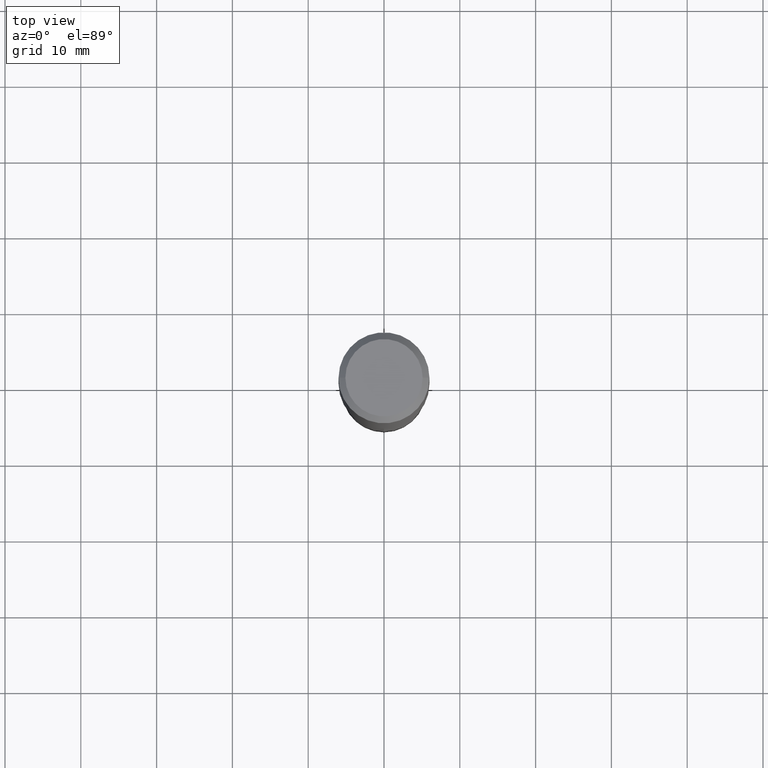
[diagram: clean part render]
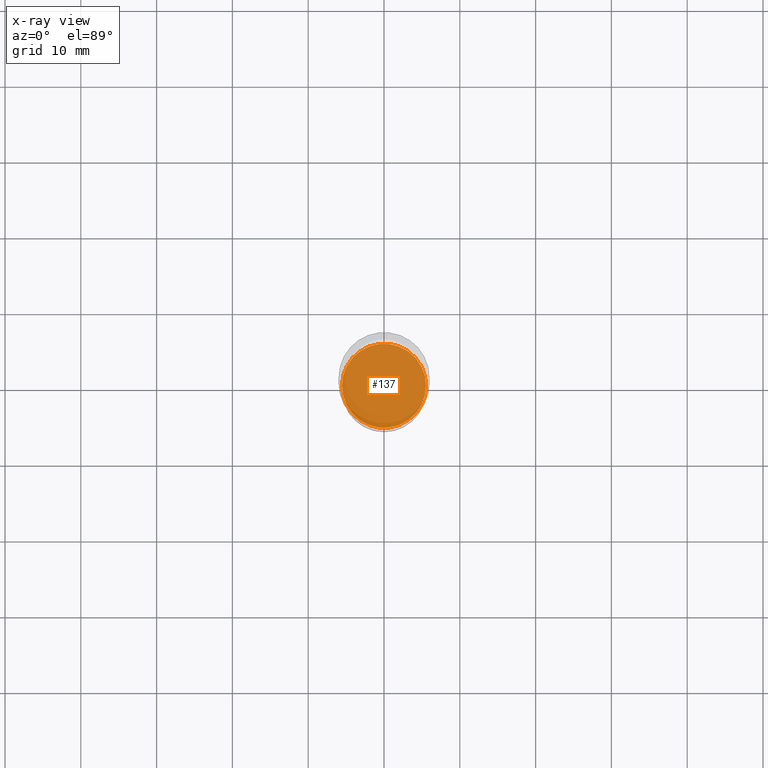
[diagram: x-ray — body ghosted, one internal face saturated and labeled with its STEP entity id]
A machine part, top view, then the same camera in x-ray: the body is ghosted and one INTERNAL B-rep face — a face not visible from any outside direction — is saturated and labeled: STEP entity #137.
In plain terms, the highlighted planar face has unit normal (-0, 0, 1).
Its self-contained STEP definition (entity closure, byte-faithful):
#25 = DIRECTION ( 'NONE',  ( -2.445468806185136597E-29, 3.491481338843145583E-15, 1.000000000000000000 ) ) ;
#33 = PLANE ( 'NONE',  #129 ) ;
#76 = EDGE_LOOP ( 'NONE', ( #460, #202 ) ) ;
#89 = EDGE_CURVE ( 'NONE', #214, #169, #319, .T. ) ;
#116 = AXIS2_PLACEMENT_3D ( 'NONE', #278, #25, #439 ) ;
#129 = AXIS2_PLACEMENT_3D ( 'NONE', #185, #325, #176 ) ;
#135 = AXIS2_PLACEMENT_3D ( 'NONE', #449, #302, #160 ) ;
#137 = ADVANCED_FACE ( 'NONE', ( #362 ), #33, .F. ) ;
#160 = DIRECTION ( 'NONE',  ( 1.000000000000000000, -6.982962677686264344E-15, 0.000000000000000000 ) ) ;
#169 = VERTEX_POINT ( 'NONE', #190 ) ;
#176 = DIRECTION ( 'NONE',  ( 1.000000000000000000, -6.982962677686265922E-15, 4.876176775795935793E-29 ) ) ;
#185 = CARTESIAN_POINT ( 'NONE',  ( 5.930750948760194713E-29, -8.467540542962398542E-15, -2.425200000000000689 ) ) ;
#190 = CARTESIAN_POINT ( 'NONE',  ( 0.2182499999999999996, -9.991572147367425589E-15, -2.425200000000000689 ) ) ;
#202 = ORIENTED_EDGE ( 'NONE', *, *, #89, .F. ) ;
#214 = VERTEX_POINT ( 'NONE', #443 ) ;
#245 = CIRCLE ( 'NONE', #135, 0.2182499999999999996 ) ;
#278 = CARTESIAN_POINT ( 'NONE',  ( 5.930750948760194713E-29, -8.467540542962398542E-15, -2.425200000000000689 ) ) ;
#302 = DIRECTION ( 'NONE',  ( -2.445468806185136597E-29, 3.491481338843145583E-15, 1.000000000000000000 ) ) ;
#311 = EDGE_CURVE ( 'NONE', #169, #214, #245, .T. ) ;
#319 = CIRCLE ( 'NONE', #116, 0.2182499999999999996 ) ;
#325 = DIRECTION ( 'NONE',  ( -2.438088387897960049E-29, 3.491481338843145188E-15, 1.000000000000000000 ) ) ;
#362 = FACE_OUTER_BOUND ( 'NONE', #76, .T. ) ;
#439 = DIRECTION ( 'NONE',  ( 1.000000000000000000, -6.982962677686264344E-15, 0.000000000000000000 ) ) ;
#443 = CARTESIAN_POINT ( 'NONE',  ( -0.2182499999999999996, -6.914131794991867506E-15, -2.425200000000000689 ) ) ;
#449 = CARTESIAN_POINT ( 'NONE',  ( 5.930750948760194713E-29, -8.467540542962398542E-15, -2.425200000000000689 ) ) ;
#460 = ORIENTED_EDGE ( 'NONE', *, *, #311, .F. ) ;